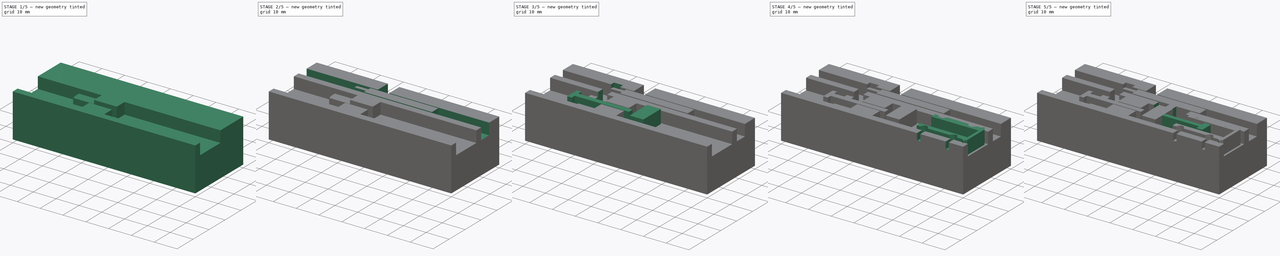
[diagram: build sequence overview — one tinted view per stage of 5, left to right]
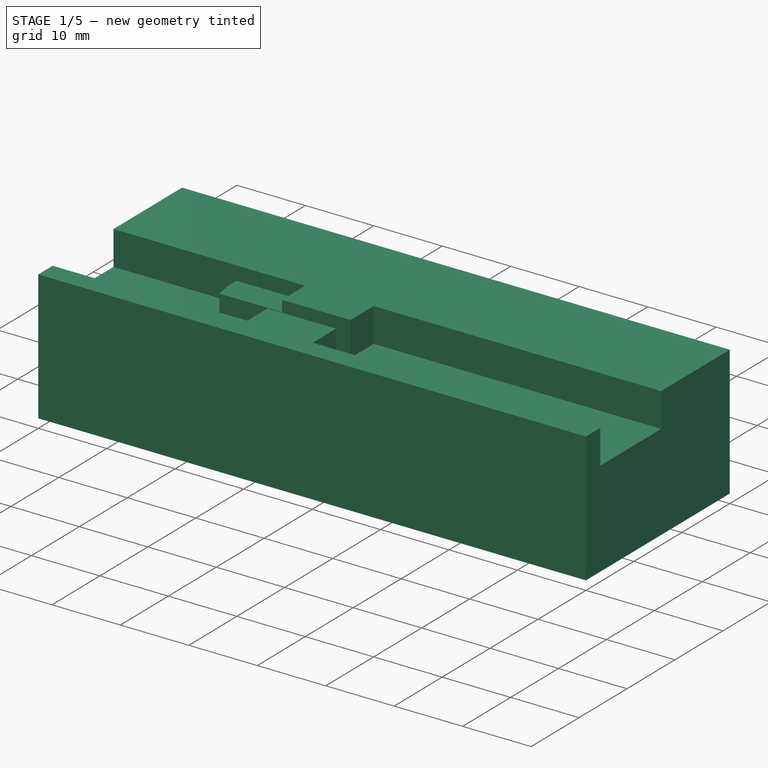
[diagram: stage 1 of 5 — iso view after this stage's code; geometry added in this stage tinted green]
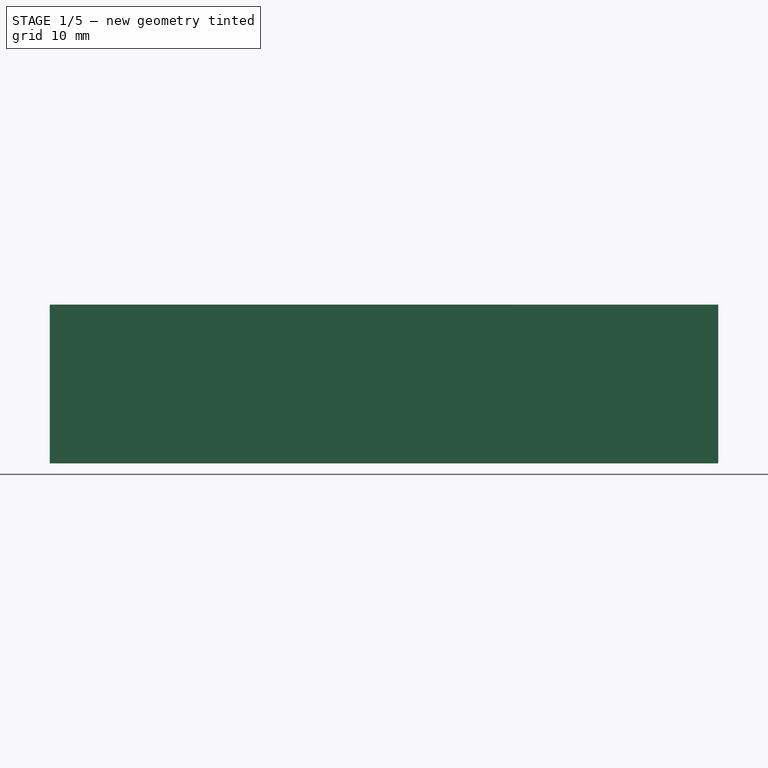
[diagram: stage 1 of 5 — front view after this stage's code; geometry added in this stage tinted green]
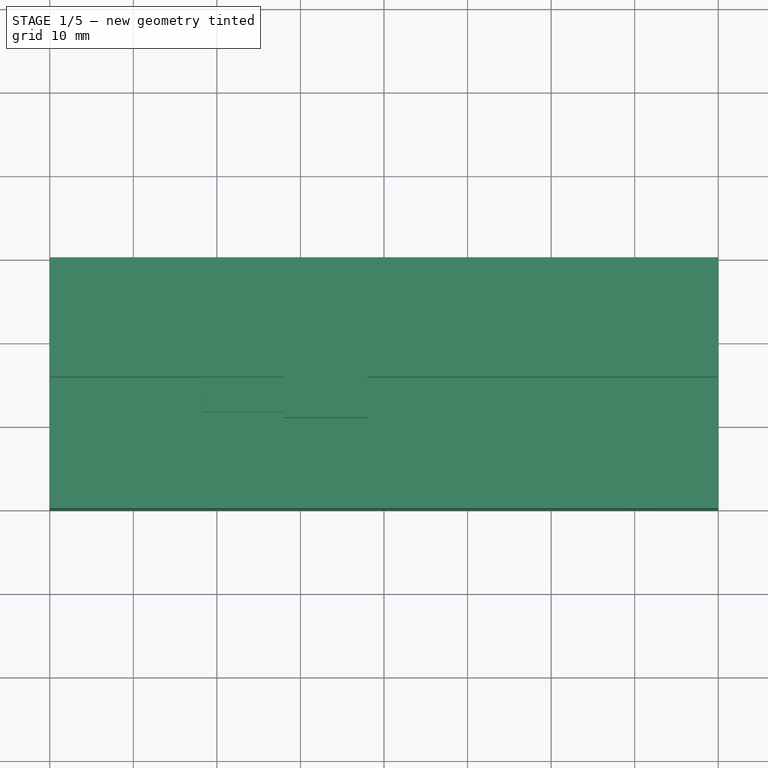
[diagram: stage 1 of 5 — top view after this stage's code; geometry added in this stage tinted green]
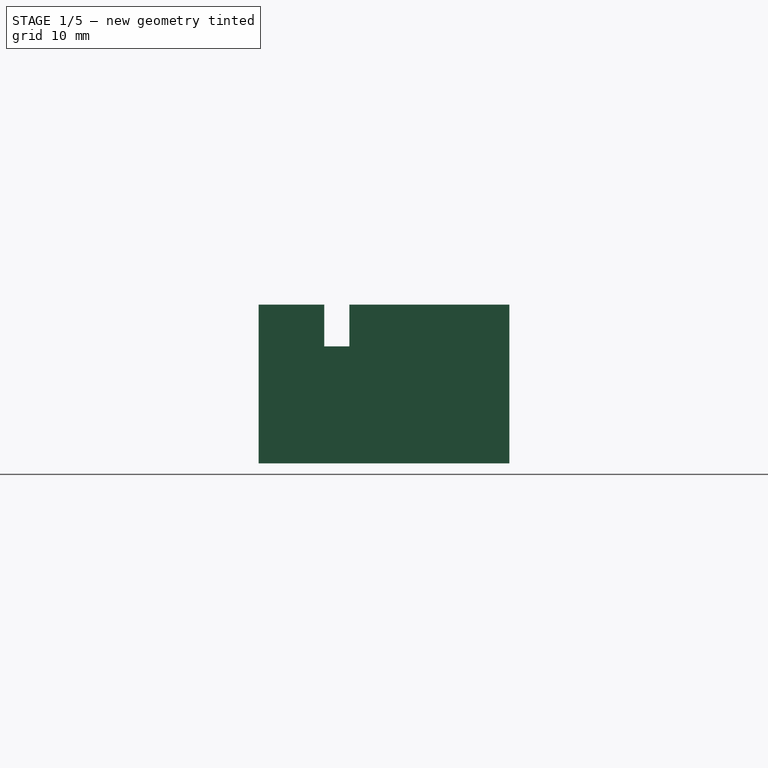
[diagram: stage 1 of 5 — right view after this stage's code; geometry added in this stage tinted green]
FCSTD DOCUMENT  (FreeCAD 0.19R)
Label: 1_stackedBoltR1
License: All rights reserved
LicenseURL: http://en.wikipedia.org/wiki/All_rights_reserved
objects: Sketcher::SketchObject×17, PartDesign::Pad×8, PartDesign::Pocket×7, PartDesign::Body×1
note: 48 computed .brp shape members not serialized (recipe doc carries the construction recipe); baked Part::Feature solids carry a one-line shape summary decoded from their .brp

FEATURE [Sketcher::SketchObject] Sketch
  FullyConstrained = true
  MapMode = 5
  Support = -> [XY_Plane]
  sketch-geometry (4):
    g0: LineSegment StartX=0 StartY=0 StartZ=0 EndX=80 EndY=0 EndZ=0
    g1: LineSegment StartX=80 StartY=0 StartZ=0 EndX=80 EndY=-30 EndZ=0
    g2: LineSegment StartX=80 StartY=-30 StartZ=0 EndX=0 EndY=-30 EndZ=0
    g3: LineSegment StartX=0 StartY=-30 StartZ=0 EndX=0 EndY=0 EndZ=0
  constraints (11):
    c: Coincident(g0,g1)
    c: Coincident(g1,g2)
    c: Coincident(g2,g3)
    c: Coincident(g3,g0)
    c: Horizontal(g0)
    c: Horizontal(g2)
    c: Vertical(g1)
    c: Vertical(g3)
    c: Distance(g1) = 30
    c: Distance(g0) = 80
    c: Coincident(g0,g-1)
FEATURE [PartDesign::Pad] Pad  label="block"
  Direction = (1,1,1)
  Length = 19
  Length2 = 100
  Midplane = true
  Profile = -> Sketch
  Type = 0
FEATURE [Sketcher::SketchObject] Sketch001
  ExternalGeometry = -> [Pad]
  FullyConstrained = true
  MapMode = 5
  Placement = pos=(0,0,9.5) rot=(0,0,1;0rad)
  Support = -> [Pad]
  sketch-geometry (12):
    g0: LineSegment StartX=80 StartY=-14.3 StartZ=0 EndX=38 EndY=-14.3 EndZ=0
    g1: LineSegment StartX=38 StartY=-14.3 StartZ=0 EndX=38 EndY=-19.15 EndZ=0
    g2: LineSegment StartX=38 StartY=-19.15 StartZ=0 EndX=28 EndY=-19.15 EndZ=0
    g3: LineSegment StartX=28 StartY=-19.15 StartZ=0 EndX=28 EndY=-14.3 EndZ=0
    g4: LineSegment StartX=28 StartY=-14.3 StartZ=0 EndX=0 EndY=-14.3 EndZ=0
    g5: LineSegment StartX=0 StartY=-14.3 StartZ=0 EndX=0 EndY=-27 EndZ=0
    g6: LineSegment StartX=0 StartY=-27 StartZ=0 EndX=28 EndY=-27 EndZ=0
    g7: LineSegment StartX=28 StartY=-27 StartZ=0 EndX=28 EndY=-22.15 EndZ=0
    g8: LineSegment StartX=28 StartY=-22.15 StartZ=0 EndX=38 EndY=-22.15 EndZ=0
    g9: LineSegment StartX=38 StartY=-22.15 StartZ=0 EndX=38 EndY=-27 EndZ=0
    g10: LineSegment StartX=38 StartY=-27 StartZ=0 EndX=80 EndY=-27 EndZ=0
    g11: LineSegment StartX=80 StartY=-27 StartZ=0 EndX=80 EndY=-14.3 EndZ=0
  constraints (36):
    c: Horizontal(g0)
    c: Coincident(g0,g1)
    c: Coincident(g1,g2)
    c: Coincident(g2,g3)
    c: Coincident(g3,g4)
    c: Horizontal(g4)
    c: Coincident(g4,g5)
    c: Coincident(g5,g6)
    c: Horizontal(g6)
    c: Coincident(g6,g7)
    c: Coincident(g7,g8)
    c: Coincident(g8,g9)
    c: Coincident(g9,g10)
    c: Horizontal(g10)
    c: Coincident(g10,g11)
    c: Coincident(g11,g0)
    c: Vertical(g11)
    c: Distance(g11) = 12.7
    c: Distance(g5) = 12.7
    c: Vertical(g5)
    c: Distance(g2) = 10
    c: Equal(g8,g2)
    c: Horizontal(g8)
    c: Horizontal(g2)
    c: Equal(g7,g9)
    c: Equal(g9,g3)
    c: Equal(g3,g1)
    c: Vertical(g1)
    c: Vertical(g3)
    c: Vertical(g9)
    c: Equal(g10,g0)
    c: Distance(g9) = 4.85
    c: Distance(g-3,g10) = 3
    c: PointOnObject(g4,g-2)
    c: PointOnObject(g0,g-4)
    c: Distance(g10) = 42
FEATURE [PartDesign::Pocket] Pocket  label="tubes"
  BaseFeature = -> Pad
  Length = 5
  Length2 = 100
  Profile = -> Sketch001
  Type = 0
FEATURE [Sketcher::SketchObject] Sketch002
  ExternalGeometry = -> [Pocket]
  FullyConstrained = false
  MapMode = 5
  Placement = pos=(0,0,4.5) rot=(0,0,1;0rad)
  Support = -> [Pocket]
  sketch-geometry (10):
    g0: LineSegment StartX=18.0194 StartY=-14.343 StartZ=0 EndX=28.0194 EndY=-14.343 EndZ=0
    g1: LineSegment StartX=28.0498 StartY=-27.0229 StartZ=0 EndX=18.0498 EndY=-27.0229 EndZ=0
    g2: LineSegment StartX=18.0194 StartY=-14.343 StartZ=0 EndX=18.0194 EndY=-16.343 EndZ=0
    g3: LineSegment StartX=18.0194 StartY=-16.343 StartZ=0 EndX=18.3988 EndY=-18.4947 EndZ=0
    g4: LineSegment StartX=18.3988 StartY=-18.4947 StartZ=0 EndX=28.0194 EndY=-18.4947 EndZ=0
    g5: LineSegment StartX=28.0194 StartY=-18.4947 StartZ=0 EndX=28.0194 EndY=-14.343 EndZ=0
    g6: LineSegment StartX=18.0498 StartY=-27.0229 StartZ=0 EndX=18.0498 EndY=-25.0229 EndZ=0
    g7: LineSegment StartX=18.0498 StartY=-25.0229 StartZ=0 EndX=18.4292 EndY=-22.8712 EndZ=0
    g8: LineSegment StartX=18.4292 StartY=-22.8712 StartZ=0 EndX=28.0498 EndY=-22.8712 EndZ=0
    g9: LineSegment StartX=28.0498 StartY=-22.8712 StartZ=0 EndX=28.0498 EndY=-27.0229 EndZ=0
  constraints (25):
    c: Horizontal(g0)
    c: Horizontal(g1)
    c: Distance(g0) = 10
    c: Coincident(g0,g2)
    c: Vertical(g2)
    c: Coincident(g2,g3)
    c: Coincident(g3,g4)
    c: Horizontal(g4)
    c: Coincident(g4,g5)
    c: Coincident(g5,g0)
    c: Vertical(g5)
    c: Coincident(g1,g6)
    c: Coincident(g6,g7)
    c: Coincident(g7,g8)
    c: Horizontal(g8)
    c: Coincident(g8,g9)
    c: Coincident(g9,g1)
    c: Equal(g9,g5)
    c: Equal(g3,g7)
    c: Equal(g4,g8)
    c: Equal(g2,g6)
    c: Vertical(g9)
    c: Angle(g7) = 1.39626
    c: Vertical(g6)
    c: Distance(g6) = 2
FEATURE [PartDesign::Pad] Pad001  label="valvebody"
  BaseFeature = -> Pocket
  Direction = (1,1,1)
  Length = 3
  Length2 = 100
  Profile = -> Sketch002
  Type = 0
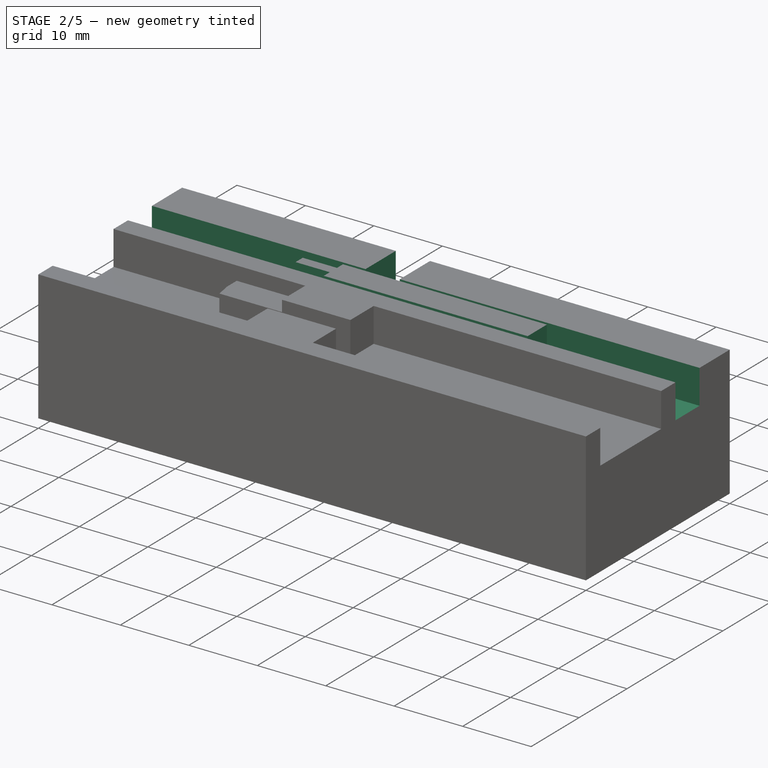
[diagram: stage 2 of 5 — iso view after this stage's code; geometry added in this stage tinted green]
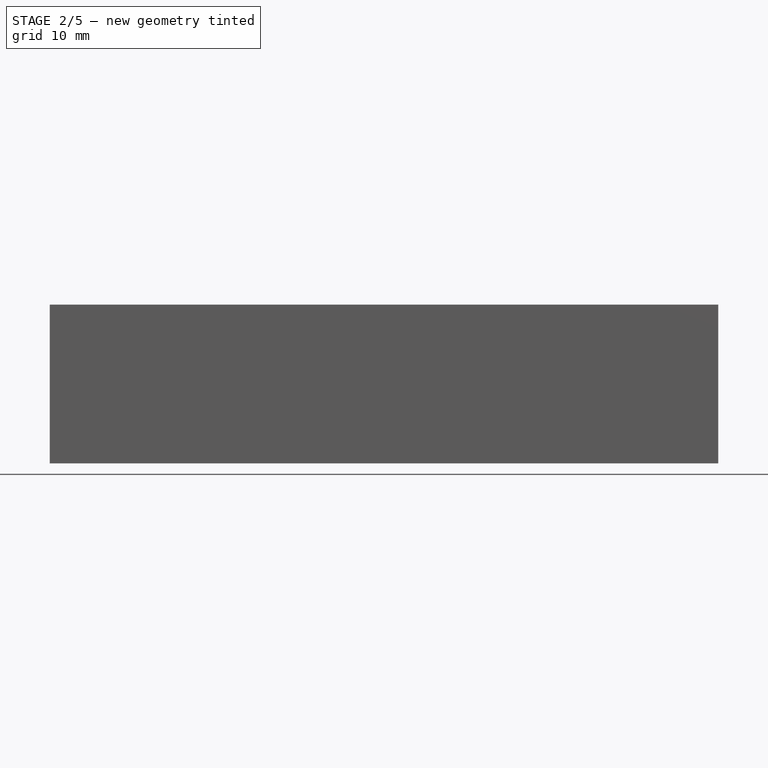
[diagram: stage 2 of 5 — front view after this stage's code; geometry added in this stage tinted green]
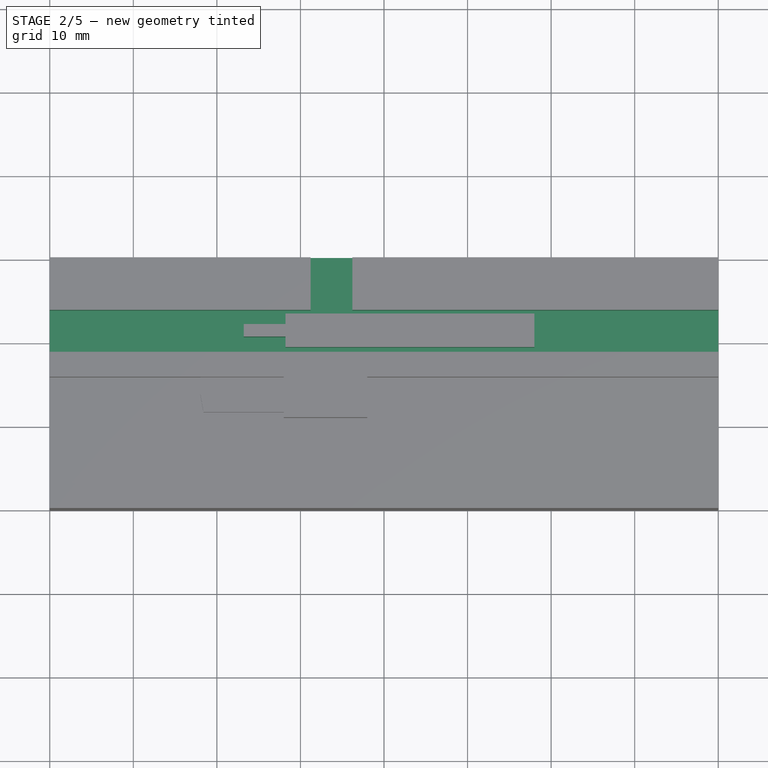
[diagram: stage 2 of 5 — top view after this stage's code; geometry added in this stage tinted green]
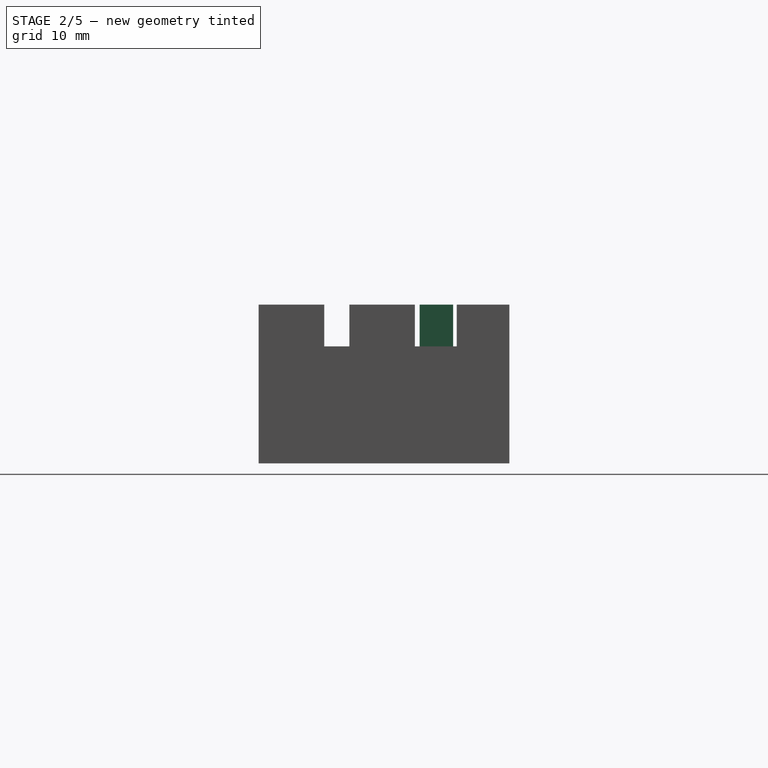
[diagram: stage 2 of 5 — right view after this stage's code; geometry added in this stage tinted green]
FEATURE [Sketcher::SketchObject] Sketch003
  ExternalGeometry = -> [Pad001]
  FullyConstrained = false
  MapMode = 5
  Placement = pos=(0,0,9.5) rot=(0,0,1;0rad)
  Support = -> [Pad001]
  sketch-geometry (4):
    g0: LineSegment StartX=-3.23808 StartY=-6.3 StartZ=0 EndX=86.4033 EndY=-6.3 EndZ=0
    g1: LineSegment StartX=86.4033 StartY=-6.3 StartZ=0 EndX=86.4033 EndY=-11.3 EndZ=0
    g2: LineSegment StartX=86.4033 StartY=-11.3 StartZ=0 EndX=-3.23808 EndY=-11.3 EndZ=0
    g3: LineSegment StartX=-3.23808 StartY=-11.3 StartZ=0 EndX=-3.23808 EndY=-6.3 EndZ=0
  constraints (9):
    c: Coincident(g0,g1)
    c: Coincident(g1,g2)
    c: Coincident(g2,g3)
    c: Coincident(g3,g0)
    c: Horizontal(g0)
    c: Horizontal(g2)
    c: Vertical(g1)
    c: Vertical(g3)
    c: Distance(g1) = 5
FEATURE [PartDesign::Pocket] Pocket001  label="upprTube"
  BaseFeature = -> Pad001
  Length = 5
  Length2 = 100
  Profile = -> Sketch003
  Type = 0
FEATURE [Sketcher::SketchObject] Sketch004
  ExternalGeometry = -> [Pocket001]
  FullyConstrained = false
  MapMode = 5
  Placement = pos=(0,0,4.5) rot=(0,0,1;0rad)
  Support = -> [Pocket001]
  sketch-geometry (8):
    g0: LineSegment StartX=58 StartY=-10.73 StartZ=0 EndX=28.2159 EndY=-10.73 EndZ=0
    g1: LineSegment StartX=28.2159 StartY=-10.73 StartZ=0 EndX=28.2159 EndY=-9.48 EndZ=0
    g2: LineSegment StartX=28.2159 StartY=-9.48 StartZ=0 EndX=23.2159 EndY=-9.48 EndZ=0
    g3: LineSegment StartX=23.2159 StartY=-9.48 StartZ=0 EndX=23.2159 EndY=-7.98 EndZ=0
    g4: LineSegment StartX=23.2159 StartY=-7.98 StartZ=0 EndX=28.2159 EndY=-7.98 EndZ=0
    g5: LineSegment StartX=28.2159 StartY=-7.98 StartZ=0 EndX=28.2159 EndY=-6.73 EndZ=0
    g6: LineSegment StartX=28.2159 StartY=-6.73 StartZ=0 EndX=58 EndY=-6.73 EndZ=0
    g7: LineSegment StartX=58 StartY=-6.73 StartZ=0 EndX=58 EndY=-10.73 EndZ=0
  constraints (22):
    c: Horizontal(g0)
    c: Coincident(g0,g1)
    c: Coincident(g1,g2)
    c: Horizontal(g2)
    c: Coincident(g2,g3)
    c: Coincident(g3,g4)
    c: Coincident(g4,g5)
    c: Coincident(g5,g6)
    c: Horizontal(g6)
    c: Coincident(g6,g7)
    c: Coincident(g7,g0)
    c: Vertical(g7)
    c: Distance(g7) = 4
    c: Distance(g3) = 1.5
    c: Vertical(g3)
    c: Horizontal(g4)
    c: Vertical(g1)
    c: Vertical(g5)
    c: Equal(g6,g0)
    c: Equal(g1,g5)
    c: DistanceY(g6) = -6.73
    c: Distance(g4) = 5
FEATURE [PartDesign::Pad] Pad002  label="bolt"
  BaseFeature = -> Pocket001
  Direction = (1,1,1)
  Length = 5
  Length2 = 100
  Profile = -> Sketch004
  Type = 0
FEATURE [Sketcher::SketchObject] Sketch005
  ExternalGeometry = -> [Pad002]
  FullyConstrained = false
  MapMode = 5
  Placement = pos=(0,0,9.5) rot=(0,0,1;0rad)
  Support = -> [Pad002]
  sketch-geometry (4):
    g0: LineSegment StartX=36.2159 StartY=6.65022 StartZ=0 EndX=31.2159 EndY=6.65022 EndZ=0
    g1: LineSegment StartX=31.2159 StartY=6.65022 StartZ=0 EndX=31.2159 EndY=-6.42796 EndZ=0
    g2: LineSegment StartX=31.2159 StartY=-6.42796 StartZ=0 EndX=36.2159 EndY=-6.42796 EndZ=0
    g3: LineSegment StartX=36.2159 StartY=-6.42796 StartZ=0 EndX=36.2159 EndY=6.65022 EndZ=0
  constraints (10):
    c: Coincident(g0,g1)
    c: Coincident(g1,g2)
    c: Coincident(g2,g3)
    c: Coincident(g3,g0)
    c: Horizontal(g0)
    c: Horizontal(g2)
    c: Vertical(g1)
    c: Vertical(g3)
    c: Distance(g0) = 5
    c: DistanceX(g-5,g2) = 13
FEATURE [PartDesign::Pocket] Pocket002  label="feedTube"
  BaseFeature = -> Pad002
  Length = 5
  Length2 = 100
  Profile = -> Sketch005
  Type = 0
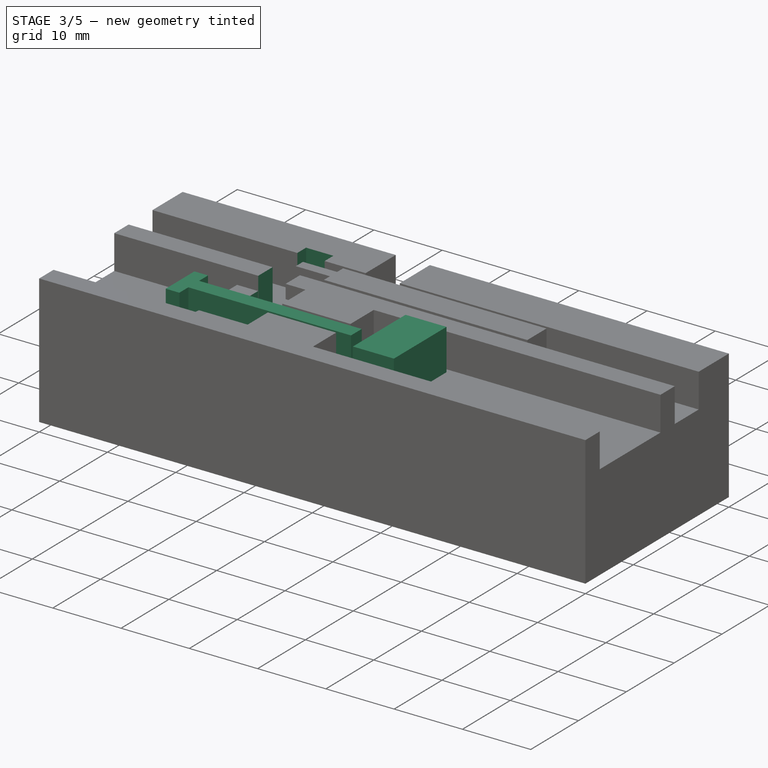
[diagram: stage 3 of 5 — iso view after this stage's code; geometry added in this stage tinted green]
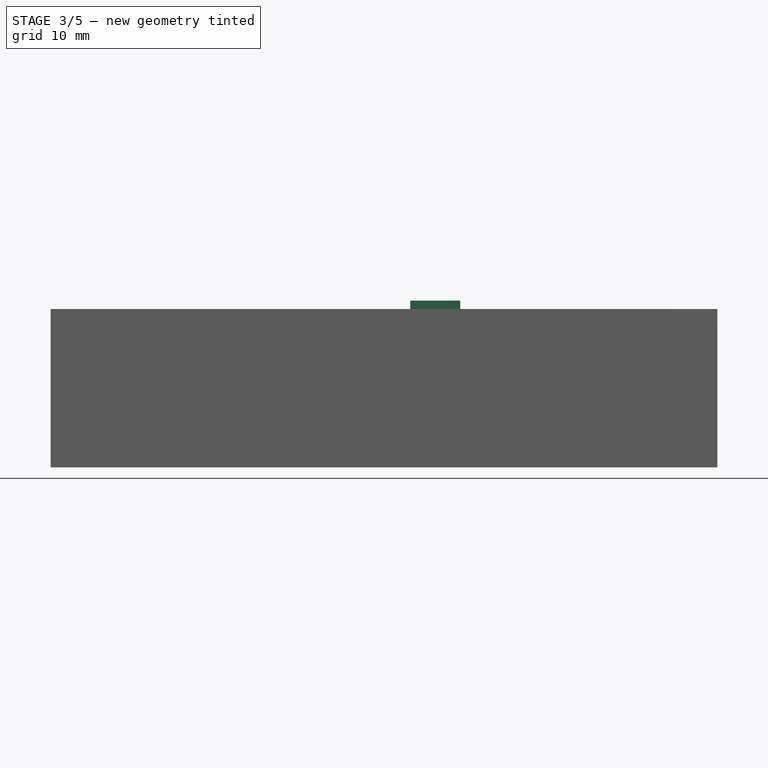
[diagram: stage 3 of 5 — front view after this stage's code; geometry added in this stage tinted green]
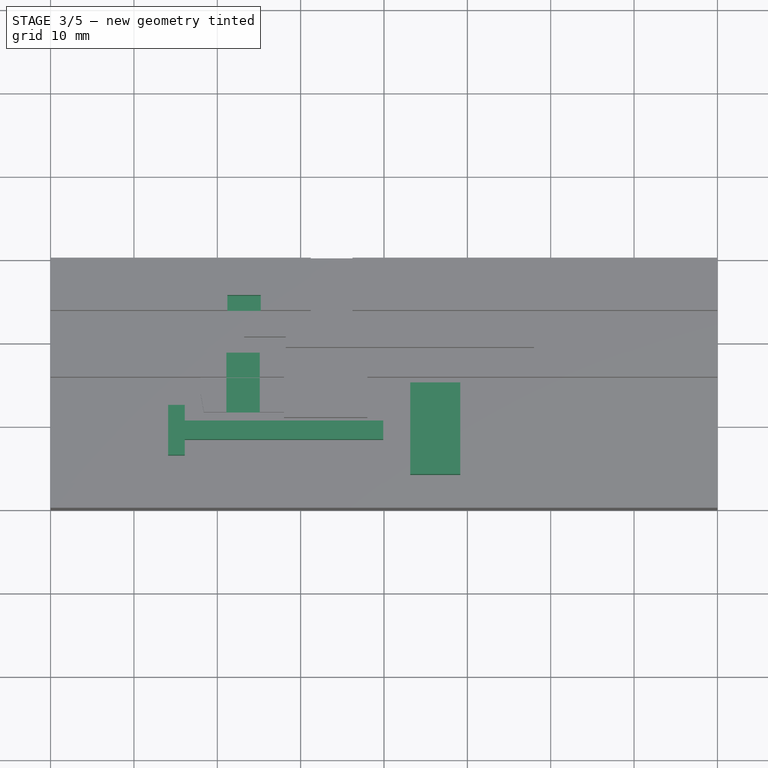
[diagram: stage 3 of 5 — top view after this stage's code; geometry added in this stage tinted green]
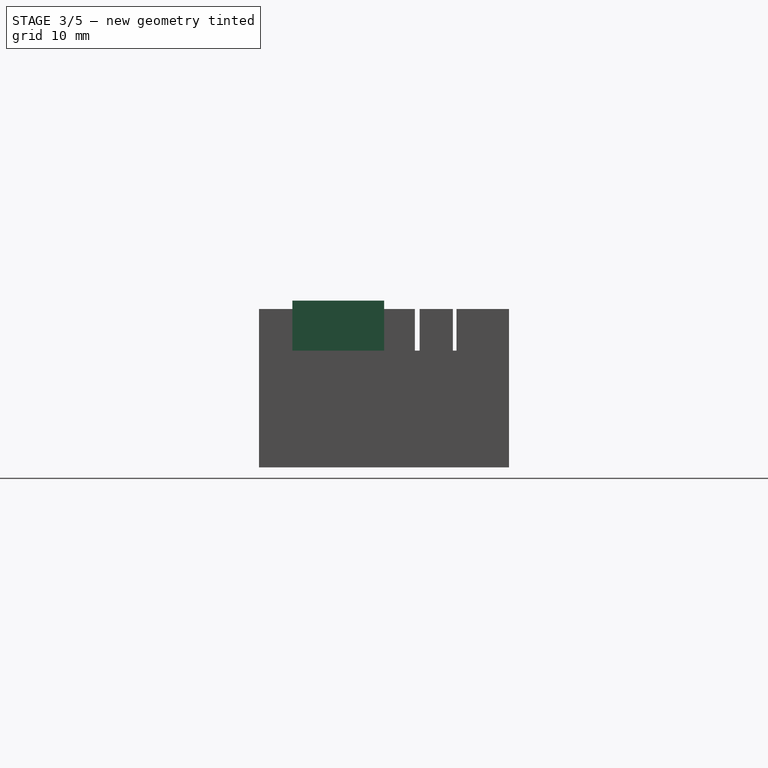
[diagram: stage 3 of 5 — right view after this stage's code; geometry added in this stage tinted green]
FEATURE [Sketcher::SketchObject] Sketch006
  FullyConstrained = false
  MapMode = 5
  Placement = pos=(0,0,4.5) rot=(0,0,1;0rad)
  Support = -> [Pocket002]
  sketch-geometry (4):
    g0: LineSegment StartX=43.1429 StartY=-25.9865 StartZ=0 EndX=49.1429 EndY=-25.9865 EndZ=0
    g1: LineSegment StartX=49.1429 StartY=-14.9865 StartZ=0 EndX=43.1429 EndY=-14.9865 EndZ=0
    g2: LineSegment StartX=43.1429 StartY=-14.9865 StartZ=0 EndX=43.1429 EndY=-25.9865 EndZ=0
    g3: LineSegment StartX=49.1429 StartY=-14.9865 StartZ=0 EndX=49.1429 EndY=-25.9865 EndZ=0
  constraints (10):
    c: Horizontal(g0)
    c: Horizontal(g1)
    c: Coincident(g2,g1)
    c: Coincident(g2,g0)
    c: Vertical(g2)
    c: Coincident(g3,g1)
    c: Coincident(g3,g0)
    c: Vertical(g3)
    c: Distance(g3) = 11
    c: Distance(g1) = 6
FEATURE [PartDesign::Pad] Pad003  label="hammer"
  BaseFeature = -> Pocket002
  Direction = (1,1,1)
  Length = 6
  Length2 = 100
  Profile = -> Sketch006
  Type = 0
FEATURE [Sketcher::SketchObject] Sketch007
  FullyConstrained = false
  MapMode = 5
  Placement = pos=(0,0,9.5) rot=(0,0,1;0rad)
  Support = -> [Pad003]
  sketch-geometry (8):
    g0: LineSegment StartX=21.0944 StartY=-10.9631 StartZ=0 EndX=25.0944 EndY=-10.9631 EndZ=0
    g1: LineSegment StartX=25.0944 StartY=-10.9631 StartZ=0 EndX=25.0944 EndY=-18.7233 EndZ=0
    g2: LineSegment StartX=25.0944 StartY=-18.7233 StartZ=0 EndX=21.0944 EndY=-18.7233 EndZ=0
    g3: LineSegment StartX=21.0944 StartY=-18.7233 StartZ=0 EndX=21.0944 EndY=-10.9631 EndZ=0
    g4: LineSegment StartX=21.2158 StartY=-4.47462 StartZ=0 EndX=25.2158 EndY=-4.47462 EndZ=0
    g5: LineSegment StartX=25.2158 StartY=-4.47462 StartZ=0 EndX=25.2158 EndY=-7.30088 EndZ=0
    g6: LineSegment StartX=25.2158 StartY=-7.30088 StartZ=0 EndX=21.2158 EndY=-7.30088 EndZ=0
    g7: LineSegment StartX=21.2158 StartY=-7.30088 StartZ=0 EndX=21.2158 EndY=-4.47462 EndZ=0
  constraints (18):
    c: Coincident(g0,g1)
    c: Coincident(g1,g2)
    c: Coincident(g2,g3)
    c: Coincident(g3,g0)
    c: Horizontal(g0)
    c: Horizontal(g2)
    c: Vertical(g1)
    c: Vertical(g3)
    c: Distance(g0) = 4
    c: Coincident(g4,g5)
    c: Coincident(g5,g6)
    c: Coincident(g6,g7)
    c: Coincident(g7,g4)
    c: Horizontal(g4)
    c: Horizontal(g6)
    c: Vertical(g5)
    c: Vertical(g7)
    c: Distance(g6) = 4
FEATURE [PartDesign::Pocket] Pocket003  label="TransferPort"
  BaseFeature = -> Pad003
  Length = 5
  Length2 = 100
  Profile = -> Sketch007
  Type = 0
FEATURE [Sketcher::SketchObject] Sketch008
  FullyConstrained = false
  MapMode = 5
  Placement = pos=(0,-9.48,0) rot=(1,0,0;1.5708rad)
  Support = -> [Pocket003]
  sketch-geometry (4):
    g0: Circle CenterX=51.1524 CenterY=-15.1501 CenterZ=0 NormalX=0 NormalY=0 NormalZ=1 AngleXU=0 Radius=0.5
    g1: Circle CenterX=55.2304 CenterY=-15.182 CenterZ=0 NormalX=0 NormalY=0 NormalZ=1 AngleXU=0 Radius=0.5
    g2: Circle CenterX=51.3772 CenterY=-26.1639 CenterZ=0 NormalX=0 NormalY=0 NormalZ=1 AngleXU=0 Radius=0.5
    g3: Circle CenterX=55.2625 CenterY=-26.1318 CenterZ=0 NormalX=0 NormalY=0 NormalZ=1 AngleXU=0 Radius=0.5
  constraints (4):
    c: Diameter(g1) = 1
    c: Equal(g1,g0)
    c: Equal(g1,g2)
    c: Equal(g1,g3)
FEATURE [Sketcher::SketchObject] Sketch011
  FullyConstrained = false
  MapMode = 5
  Placement = pos=(0,0,4.5) rot=(0,0,1;0rad)
  Support = -> [Pocket003]
  sketch-geometry (8):
    g0: LineSegment StartX=39.9154 StartY=-19.543 StartZ=0 EndX=39.9154 EndY=-21.793 EndZ=0
    g1: LineSegment StartX=39.9154 StartY=-21.793 StartZ=0 EndX=16.0989 EndY=-21.793 EndZ=0
    g2: LineSegment StartX=16.0989 StartY=-21.793 StartZ=0 EndX=16.0989 EndY=-23.668 EndZ=0
    g3: LineSegment StartX=16.0989 StartY=-23.668 StartZ=0 EndX=14.0989 EndY=-23.668 EndZ=0
    g4: LineSegment StartX=14.0989 StartY=-23.668 StartZ=0 EndX=14.0989 EndY=-17.668 EndZ=0
    g5: LineSegment StartX=14.0989 StartY=-17.668 StartZ=0 EndX=16.0989 EndY=-17.668 EndZ=0
    g6: LineSegment StartX=16.0989 StartY=-17.668 StartZ=0 EndX=16.0989 EndY=-19.543 EndZ=0
    g7: LineSegment StartX=16.0989 StartY=-19.543 StartZ=0 EndX=39.9154 EndY=-19.543 EndZ=0
  constraints (21):
    c: Coincident(g0,g1)
    c: Horizontal(g1)
    c: Coincident(g1,g2)
    c: Vertical(g2)
    c: Coincident(g2,g3)
    c: Coincident(g3,g4)
    c: Coincident(g4,g5)
    c: Horizontal(g5)
    c: Coincident(g5,g6)
    c: Coincident(g6,g7)
    c: Coincident(g7,g0)
    c: Horizontal(g7)
    c: Vertical(g0)
    c: Vertical(g4)
    c: Equal(g3,g5)
    c: Equal(g2,g6)
    c: Horizontal(g3)
    c: Distance(g0) = 2.25
    c: Distance(g5,g2) = 6
    c: Distance(g5) = 2
    c: Equal(g1,g7)
FEATURE [Sketcher::SketchObject] Sketch012
  FullyConstrained = true
  MapMode = 5
  Placement = pos=(0,-15.0348,0) rot=(0,0.707107,0.707107;3.14159rad)
FEATURE [PartDesign::Pad] Pad004  label="valveStem"
  BaseFeature = -> Pocket003
  Direction = (1,1,1)
  Length = 5
  Length2 = 100
  Profile = -> Sketch011
  Type = 0
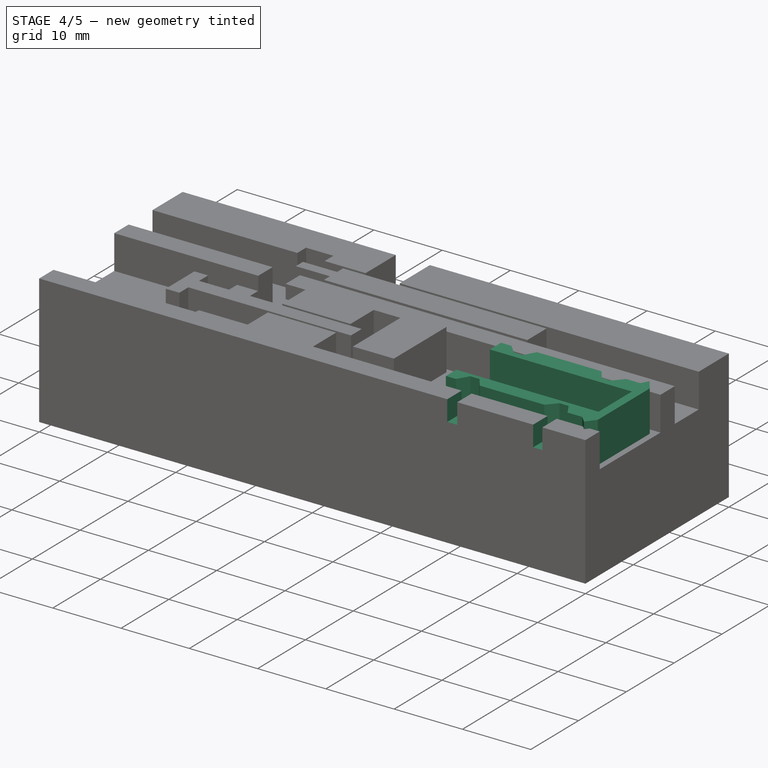
[diagram: stage 4 of 5 — iso view after this stage's code; geometry added in this stage tinted green]
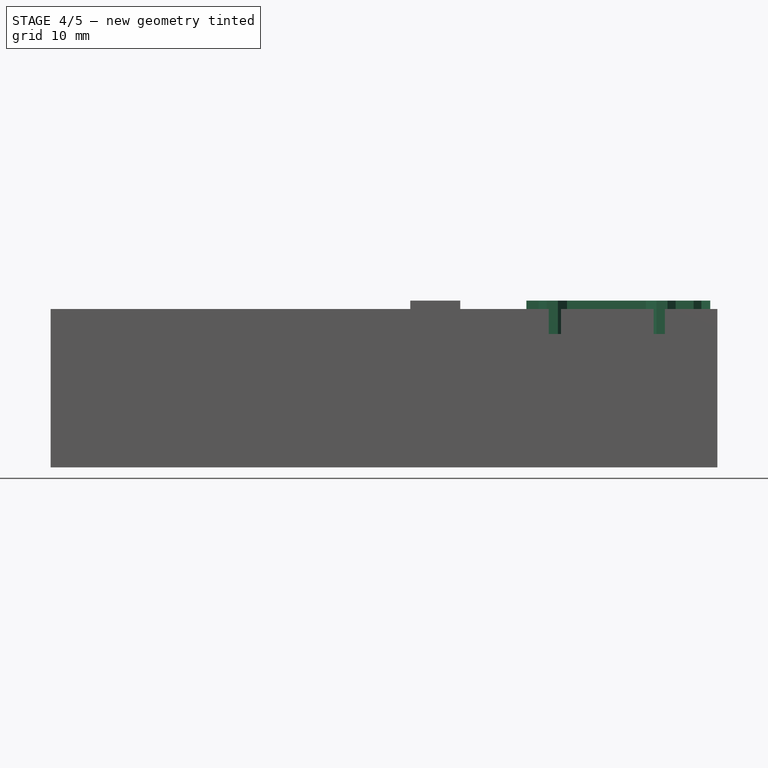
[diagram: stage 4 of 5 — front view after this stage's code; geometry added in this stage tinted green]
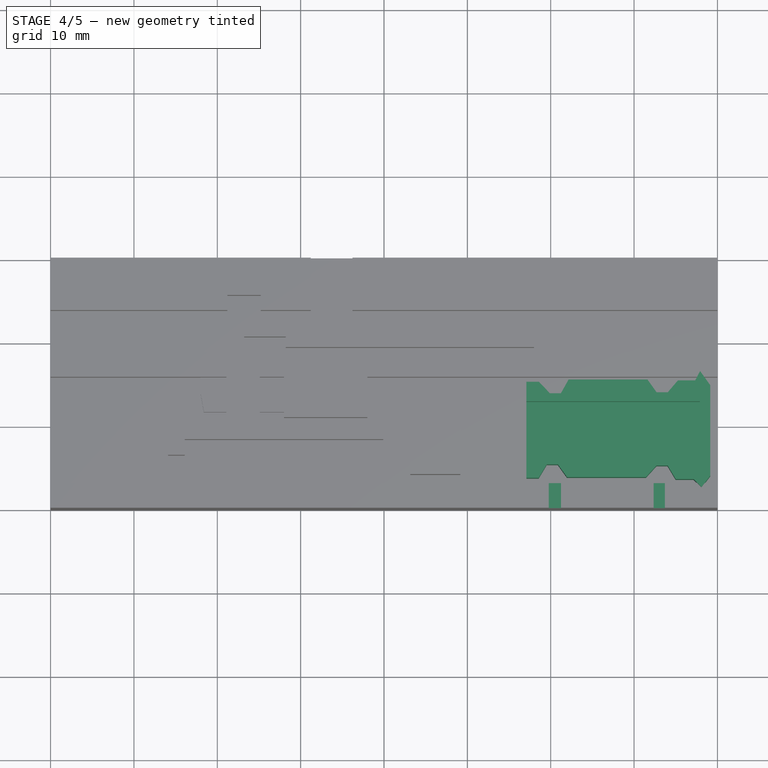
[diagram: stage 4 of 5 — top view after this stage's code; geometry added in this stage tinted green]
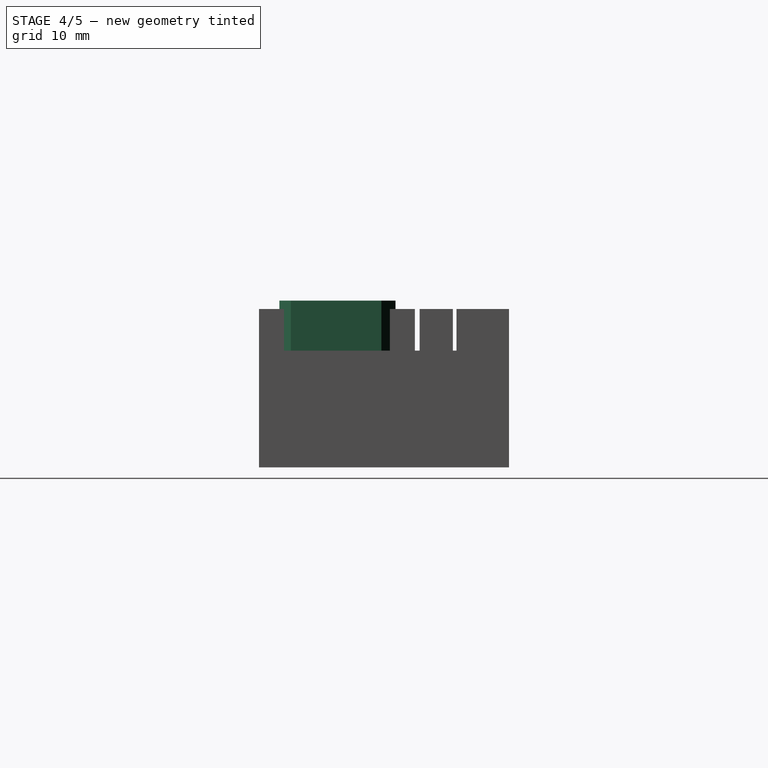
[diagram: stage 4 of 5 — right view after this stage's code; geometry added in this stage tinted green]
FEATURE [Sketcher::SketchObject] Sketch010
  FullyConstrained = false
  MapMode = 5
  Placement = pos=(0,0,9.5) rot=(0,0,1;0rad)
  Support = -> [Pad004]
  sketch-geometry (8):
    g0: LineSegment StartX=59.7704 StartY=-26.4677 StartZ=0 EndX=61.2312 EndY=-26.4677 EndZ=0
    g1: LineSegment StartX=61.2312 StartY=-26.4677 StartZ=0 EndX=61.2312 EndY=-30.4462 EndZ=0
    g2: LineSegment StartX=61.2312 StartY=-30.4462 StartZ=0 EndX=59.7704 EndY=-30.4462 EndZ=0
    g3: LineSegment StartX=59.7704 StartY=-30.4462 StartZ=0 EndX=59.7704 EndY=-26.4677 EndZ=0
    g4: LineSegment StartX=72.3494 StartY=-26.3497 StartZ=0 EndX=73.6951 EndY=-26.3497 EndZ=0
    g5: LineSegment StartX=73.6951 StartY=-26.3497 StartZ=0 EndX=73.6951 EndY=-30.5623 EndZ=0
    g6: LineSegment StartX=73.6951 StartY=-30.5623 StartZ=0 EndX=72.3494 EndY=-30.5623 EndZ=0
    g7: LineSegment StartX=72.3494 StartY=-30.5623 StartZ=0 EndX=72.3494 EndY=-26.3497 EndZ=0
  constraints (16):
    c: Coincident(g0,g1)
    c: Coincident(g1,g2)
    c: Coincident(g2,g3)
    c: Coincident(g3,g0)
    c: Horizontal(g0)
    c: Horizontal(g2)
    c: Vertical(g1)
    c: Vertical(g3)
    c: Coincident(g4,g5)
    c: Coincident(g5,g6)
    c: Coincident(g6,g7)
    c: Coincident(g7,g4)
    c: Horizontal(g4)
    c: Horizontal(g6)
    c: Vertical(g5)
    c: Vertical(g7)
FEATURE [PartDesign::Pocket] Pocket004  label="LPholes"
  BaseFeature = -> Pad004
  Length = 3
  Length2 = 100
  Profile = -> Sketch010
  Type = 0
FEATURE [Sketcher::SketchObject] Sketch009
  FullyConstrained = false
  MapMode = 5
  Placement = pos=(0,0,4.5) rot=(0,0,1;0rad)
  Support = -> [Pocket004]
  sketch-geometry (24):
    g0: LineSegment StartX=79.1398 StartY=-26.1754 StartZ=0 EndX=79.1398 EndY=-15.3115 EndZ=0
    g1: LineSegment StartX=75.2663 StartY=-14.7348 StartZ=0 EndX=74.0349 EndY=-16.169 EndZ=0
    g2: LineSegment StartX=74.0349 StartY=-16.169 StartZ=0 EndX=72.705 EndY=-16.169 EndZ=0
    g3: LineSegment StartX=72.705 StartY=-16.169 StartZ=0 EndX=71.6036 EndY=-14.6327 EndZ=0
    g4: LineSegment StartX=71.6036 StartY=-14.6327 StartZ=0 EndX=62.1483 EndY=-14.6327 EndZ=0
    g5: LineSegment StartX=62.1483 StartY=-14.6327 StartZ=0 EndX=61.2249 EndY=-16.2821 EndZ=0
    g6: LineSegment StartX=61.2249 StartY=-16.2821 StartZ=0 EndX=59.8949 EndY=-16.2821 EndZ=0
    g7: LineSegment StartX=59.8949 StartY=-16.2821 StartZ=0 EndX=58.5943 EndY=-14.9105 EndZ=0
    g8: LineSegment StartX=58.5943 StartY=-14.9105 StartZ=0 EndX=57.0835 EndY=-14.9105 EndZ=0
    g9: LineSegment StartX=57.0835 StartY=-14.9105 StartZ=0 EndX=57.0835 EndY=-26.4439 EndZ=0
    g10: LineSegment StartX=57.0835 StartY=-26.4439 StartZ=0 EndX=58.5536 EndY=-26.4439 EndZ=0
    g11: LineSegment StartX=58.5536 StartY=-26.4439 StartZ=0 EndX=59.5245 EndY=-24.822 EndZ=0
    g12: LineSegment StartX=59.5245 StartY=-24.822 StartZ=0 EndX=60.8545 EndY=-24.822 EndZ=0
    g13: LineSegment StartX=60.8545 StartY=-24.822 StartZ=0 EndX=61.9605 EndY=-26.3549 EndZ=0
    g14: LineSegment StartX=61.9605 StartY=-26.3549 StartZ=0 EndX=71.4158 EndY=-26.3549 EndZ=0
    g15: LineSegment StartX=71.4158 StartY=-26.3549 StartZ=0 EndX=72.6886 EndY=-24.9574 EndZ=0
    g16: LineSegment StartX=72.6886 StartY=-24.9574 StartZ=0 EndX=74.0186 EndY=-24.9574 EndZ=0
    g17: LineSegment StartX=74.0186 StartY=-24.9574 StartZ=0 EndX=74.9847 EndY=-26.5821 EndZ=0
    g18: LineSegment StartX=75.2663 StartY=-14.7348 StartZ=0 EndX=77.3357 EndY=-14.7348 EndZ=0
    g19: LineSegment StartX=77.3357 StartY=-14.7348 StartZ=0 EndX=77.924 EndY=-13.6251 EndZ=0
    g20: LineSegment StartX=77.924 StartY=-13.6251 StartZ=0 EndX=79.1398 EndY=-15.3115 EndZ=0
    g21: LineSegment StartX=74.9847 StartY=-26.5821 StartZ=0 EndX=77.1396 EndY=-26.5821 EndZ=0
    g22: LineSegment StartX=77.1396 StartY=-26.5821 StartZ=0 EndX=78.0808 EndY=-27.548 EndZ=0
    g23: LineSegment StartX=78.0808 StartY=-27.548 StartZ=0 EndX=79.1398 EndY=-26.1754 EndZ=0
  constraints (47):
    c: Vertical(g0)
    c: Coincident(g1,g2)
    c: Horizontal(g2)
    c: Coincident(g2,g3)
    c: Coincident(g3,g4)
    c: Horizontal(g4)
    c: Coincident(g4,g5)
    c: Coincident(g5,g6)
    c: Coincident(g6,g7)
    c: Coincident(g7,g8)
    c: Coincident(g8,g9)
    c: Vertical(g9)
    c: Coincident(g9,g10)
    c: Coincident(g10,g11)
    c: Coincident(g11,g12)
    c: Coincident(g12,g13)
    c: Coincident(g13,g14)
    c: Coincident(g14,g15)
    c: Coincident(g15,g16)
    c: Coincident(g16,g17)
    c: Equal(g2,g16)
    c: Equal(g16,g12)
    c: Equal(g12,g6)
    c: Equal(g14,g4)
    c: Equal(g17,g15)
    c: Equal(g15,g3)
    c: Equal(g3,g1)
    c: Equal(g1,g5)
    c: Equal(g5,g7)
    c: Equal(g7,g13)
    c: Equal(g13,g11)
    c: Horizontal(g8)
    c: Horizontal(g10)
    c: Horizontal(g14)
    c: Horizontal(g16)
    c: Horizontal(g12)
    c: Horizontal(g6)
    c: Coincident(g1,g18)
    c: Horizontal(g18)
    c: Coincident(g18,g19)
    c: Coincident(g19,g20)
    c: Coincident(g20,g0)
    c: Coincident(g17,g21)
    c: Horizontal(g21)
    c: Coincident(g21,g22)
    c: Coincident(g22,g23)
    c: Coincident(g23,g0)
FEATURE [PartDesign::Pad] Pad005
  BaseFeature = -> Pocket004
  Direction = (1,1,1)
  Length = 6
  Length2 = 100
  Profile = -> Sketch009
  Type = 0
FEATURE [Sketcher::SketchObject] Sketch013
  FullyConstrained = false
  MapMode = 5
  Placement = pos=(0,0,10.5) rot=(0,0,1;0rad)
  Support = -> [Pad005]
  sketch-geometry (4):
    g0: LineSegment StartX=55.5423 StartY=-17.2525 StartZ=0 EndX=77.8927 EndY=-17.2525 EndZ=0
    g1: LineSegment StartX=77.8927 StartY=-17.2525 StartZ=0 EndX=77.8927 EndY=-24.2525 EndZ=0
    g2: LineSegment StartX=77.8927 StartY=-24.2525 StartZ=0 EndX=55.5423 EndY=-24.2525 EndZ=0
    g3: LineSegment StartX=55.5423 StartY=-24.2525 StartZ=0 EndX=55.5423 EndY=-17.2525 EndZ=0
  constraints (9):
    c: Coincident(g0,g1)
    c: Coincident(g1,g2)
    c: Coincident(g2,g3)
    c: Coincident(g3,g0)
    c: Horizontal(g0)
    c: Horizontal(g2)
    c: Vertical(g1)
    c: Vertical(g3)
    c: Distance(g3) = 7
FEATURE [PartDesign::Pocket] Pocket005
  BaseFeature = -> Pad005
  Length = 4
  Length2 = 100
  Profile = -> Sketch013
  Type = 0
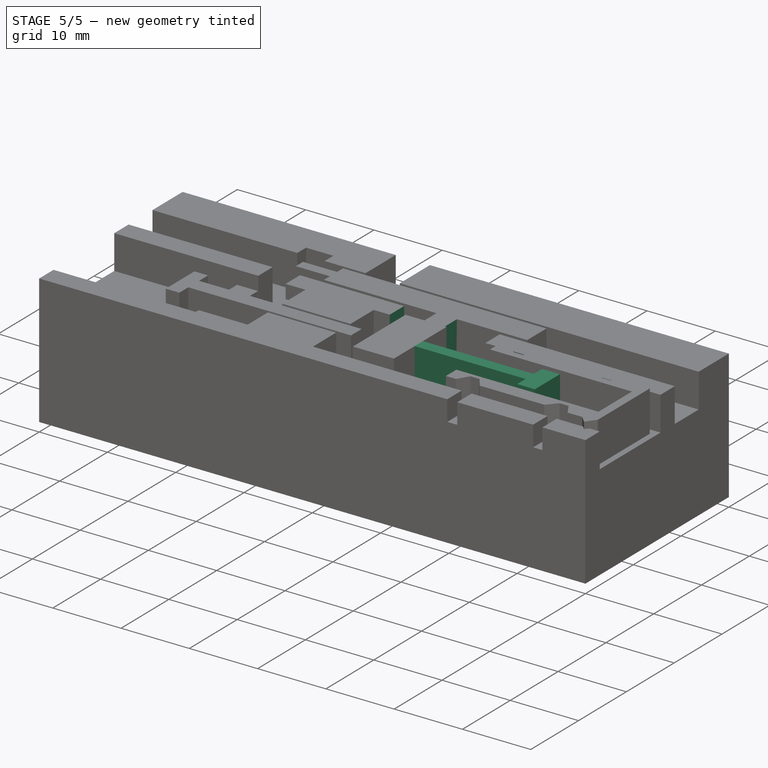
[diagram: stage 5 of 5 — iso view after this stage's code; geometry added in this stage tinted green]
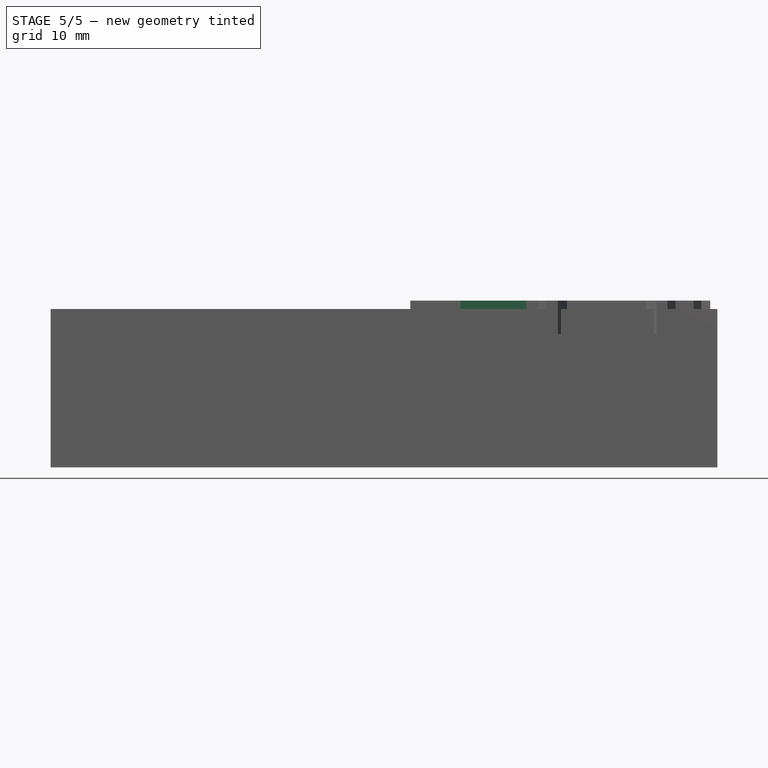
[diagram: stage 5 of 5 — front view after this stage's code; geometry added in this stage tinted green]
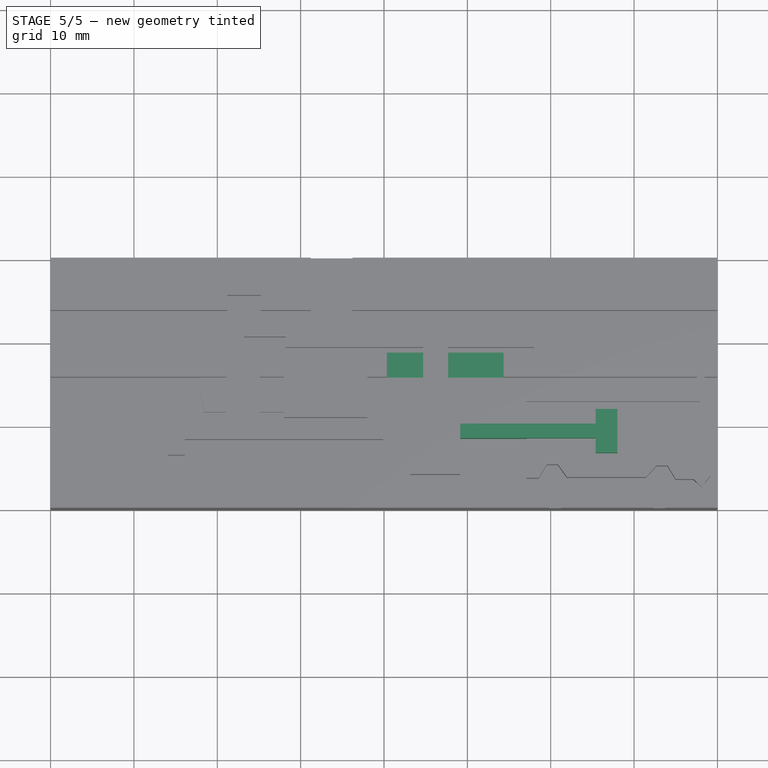
[diagram: stage 5 of 5 — top view after this stage's code; geometry added in this stage tinted green]
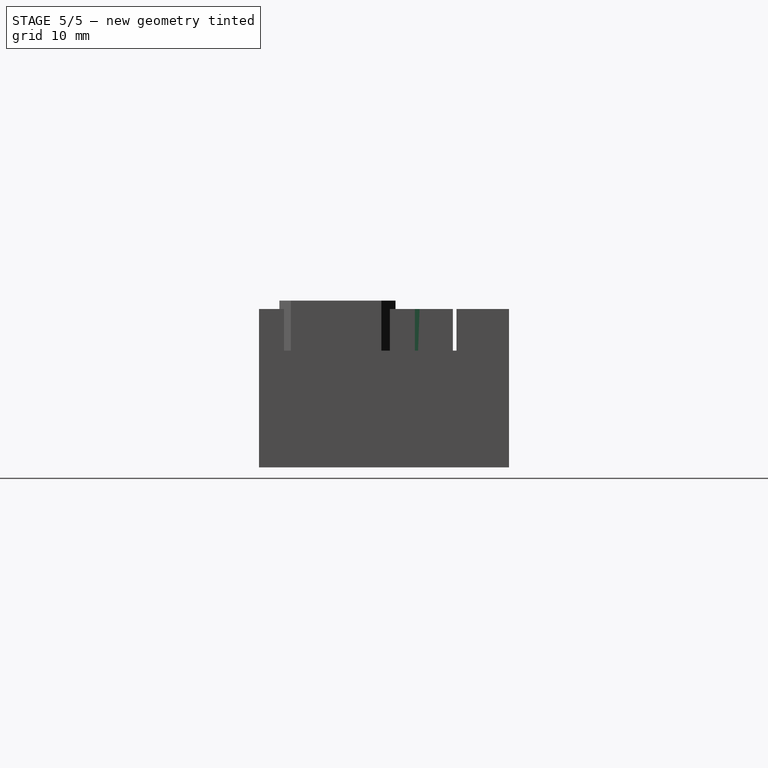
[diagram: stage 5 of 5 — right view after this stage's code; geometry added in this stage tinted green]
FEATURE [Sketcher::SketchObject] Sketch014
  FullyConstrained = false
  MapMode = 5
  Placement = pos=(0,0,10.5) rot=(0,0,1;0rad)
  Support = -> [Pocket005]
  sketch-geometry (8):
    g0: LineSegment StartX=47.8164 StartY=-19.9171 StartZ=0 EndX=65.3879 EndY=-19.9171 EndZ=0
    g1: LineSegment StartX=65.3879 StartY=-19.9171 StartZ=0 EndX=65.3879 EndY=-18.1618 EndZ=0
    g2: LineSegment StartX=65.3879 StartY=-18.1618 StartZ=0 EndX=67.9917 EndY=-18.1618 EndZ=0
    g3: LineSegment StartX=67.9917 StartY=-18.1618 StartZ=0 EndX=67.9917 EndY=-23.4067 EndZ=0
    g4: LineSegment StartX=67.9917 StartY=-23.4067 StartZ=0 EndX=65.3879 EndY=-23.4067 EndZ=0
    g5: LineSegment StartX=65.3879 StartY=-23.4067 StartZ=0 EndX=65.3879 EndY=-21.6514 EndZ=0
    g6: LineSegment StartX=65.3879 StartY=-21.6514 StartZ=0 EndX=47.8164 EndY=-21.6514 EndZ=0
    g7: LineSegment StartX=47.8164 StartY=-21.6514 StartZ=0 EndX=47.8164 EndY=-19.9171 EndZ=0
  constraints (18):
    c: Horizontal(g0)
    c: Coincident(g0,g1)
    c: Vertical(g1)
    c: Coincident(g1,g2)
    c: Horizontal(g2)
    c: Coincident(g2,g3)
    c: Coincident(g3,g4)
    c: Coincident(g4,g5)
    c: Coincident(g5,g6)
    c: Coincident(g6,g7)
    c: Coincident(g7,g0)
    c: Vertical(g7)
    c: Equal(g6,g0)
    c: Equal(g5,g1)
    c: Vertical(g5)
    c: Vertical(g3)
    c: Horizontal(g6)
    c: Horizontal(g4)
FEATURE [PartDesign::Pad] Pad006
  BaseFeature = -> Pocket005
  Direction = (1,1,1)
  Length = 10
  Length2 = 100
  Profile = -> Sketch014
  Reversed = true
  Type = 0
FEATURE [Sketcher::SketchObject] Sketch015
  FullyConstrained = false
  MapMode = 5
  Placement = pos=(0,0,9.5) rot=(0,0,1;0rad)
  Support = -> [Pad006]
  sketch-geometry (4):
    g0: LineSegment StartX=40.3521 StartY=-10.9127 StartZ=0 EndX=54.3521 EndY=-10.9127 EndZ=0
    g1: LineSegment StartX=54.3521 StartY=-10.9127 StartZ=0 EndX=54.3521 EndY=-14.7449 EndZ=0
    g2: LineSegment StartX=54.3521 StartY=-14.7449 StartZ=0 EndX=40.3521 EndY=-14.7449 EndZ=0
    g3: LineSegment StartX=40.3521 StartY=-14.7449 StartZ=0 EndX=40.3521 EndY=-10.9127 EndZ=0
  constraints (9):
    c: Coincident(g0,g1)
    c: Coincident(g1,g2)
    c: Coincident(g2,g3)
    c: Coincident(g3,g0)
    c: Horizontal(g0)
    c: Horizontal(g2)
    c: Vertical(g1)
    c: Vertical(g3)
    c: Distance(g0) = 14
FEATURE [PartDesign::Pocket] Pocket006
  BaseFeature = -> Pad006
  Length = 5
  Length2 = 100
  Profile = -> Sketch015
  Type = 0
FEATURE [Sketcher::SketchObject] Sketch016
  FullyConstrained = false
  MapMode = 5
  Placement = pos=(0,0,9.5) rot=(0,0,1;0rad)
  Support = -> [Pocket006]
  sketch-geometry (4):
    g0: LineSegment StartX=44.6913 StartY=-9.33189 StartZ=0 EndX=47.6913 EndY=-9.33189 EndZ=0
    g1: LineSegment StartX=47.6913 StartY=-9.33189 StartZ=0 EndX=47.6913 EndY=-16.5173 EndZ=0
    g2: LineSegment StartX=47.6913 StartY=-16.5173 StartZ=0 EndX=44.6913 EndY=-16.5173 EndZ=0
    g3: LineSegment StartX=44.6913 StartY=-16.5173 StartZ=0 EndX=44.6913 EndY=-9.33189 EndZ=0
  constraints (9):
    c: Coincident(g0,g1)
    c: Coincident(g1,g2)
    c: Coincident(g2,g3)
    c: Coincident(g3,g0)
    c: Horizontal(g0)
    c: Horizontal(g2)
    c: Vertical(g1)
    c: Vertical(g3)
    c: Distance(g0) = 3
FEATURE [PartDesign::Pad] Pad007
  BaseFeature = -> Pocket006
  Direction = (1,1,1)
  Length = 10
  Length2 = 100
  Profile = -> Sketch016
  Reversed = true
  Type = 0
FEATURE [PartDesign::Body] Body
  Group = -> [Sketch,Pad,Sketch001,Pocket,Sketch002,Pad001,Sketch003,Pocket001,Sketch004,Pad002,Sketch005,Pocket002,Sketch006,Pad003,Sketch007,Pocket003,Sketch008,Sketch009,Sketch010,Sketch011,Sketch012,Pad004,Pocket004,Pad005,Sketch013,Pocket005,Sketch014,Pad006,Sketch015,Pocket006,Sketch016,Pad007]
  Origin = -> Origin
  Tip = -> Pad007
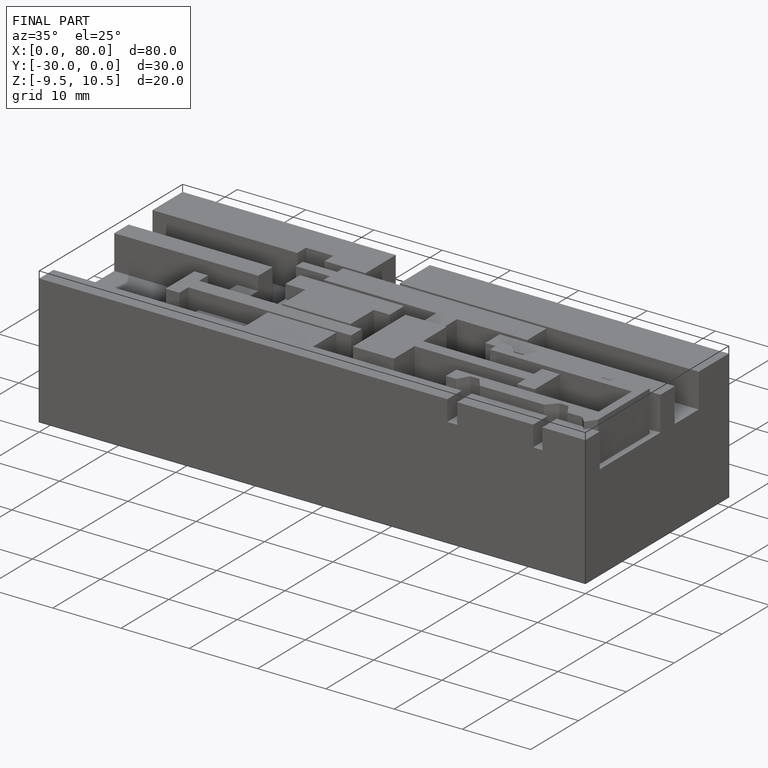
[diagram: finished part — iso view with bounding-box wireframe]
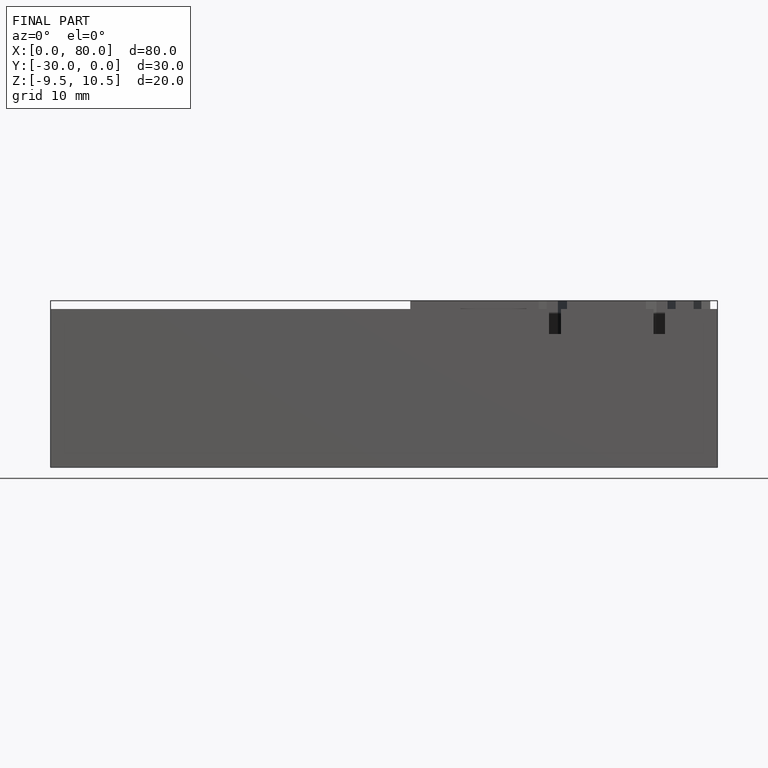
[diagram: finished part — front view with bounding-box wireframe]
